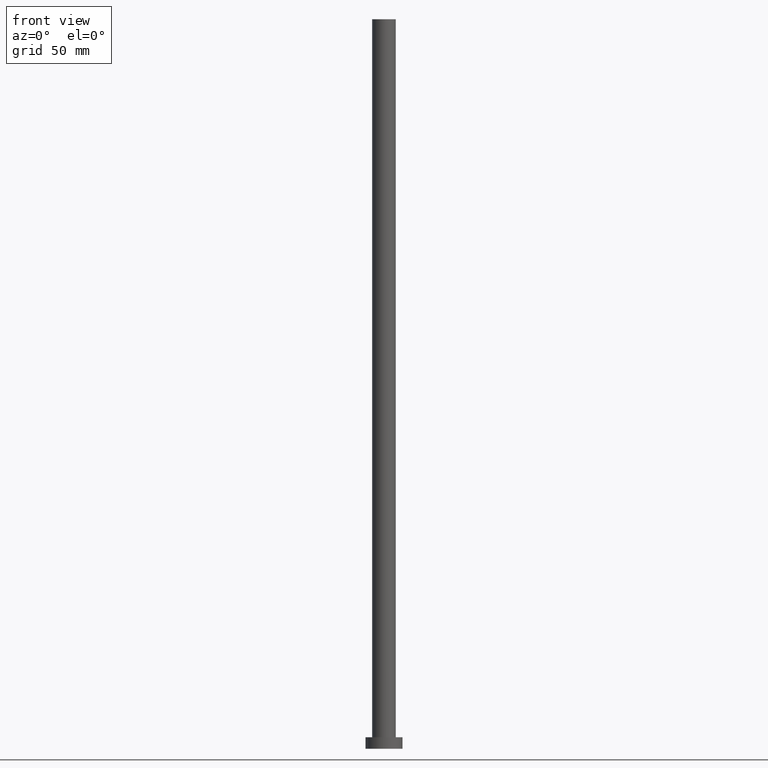
[diagram: clean part render]
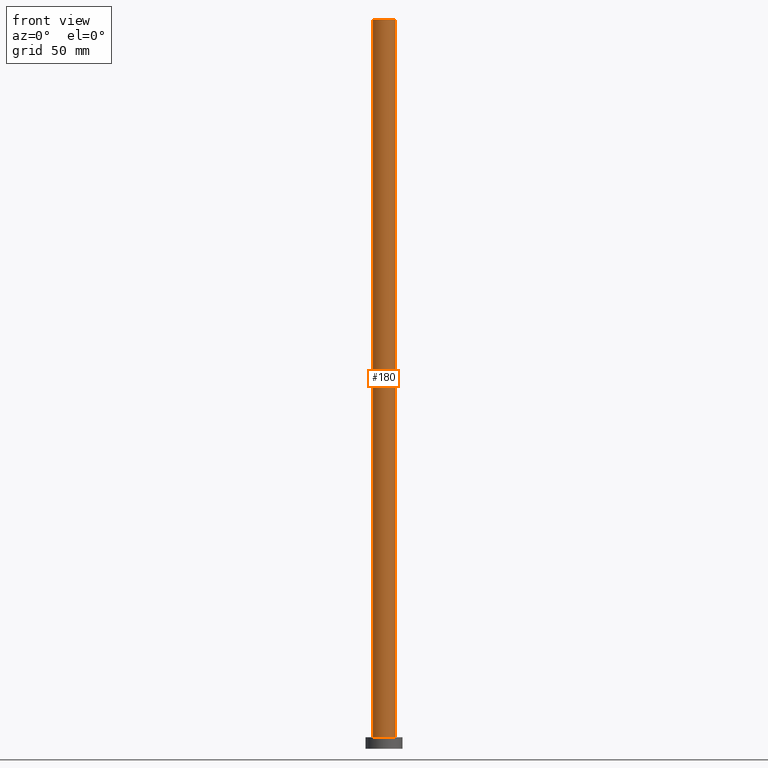
[diagram: same view with one face highlighted and labeled with its STEP entity id]
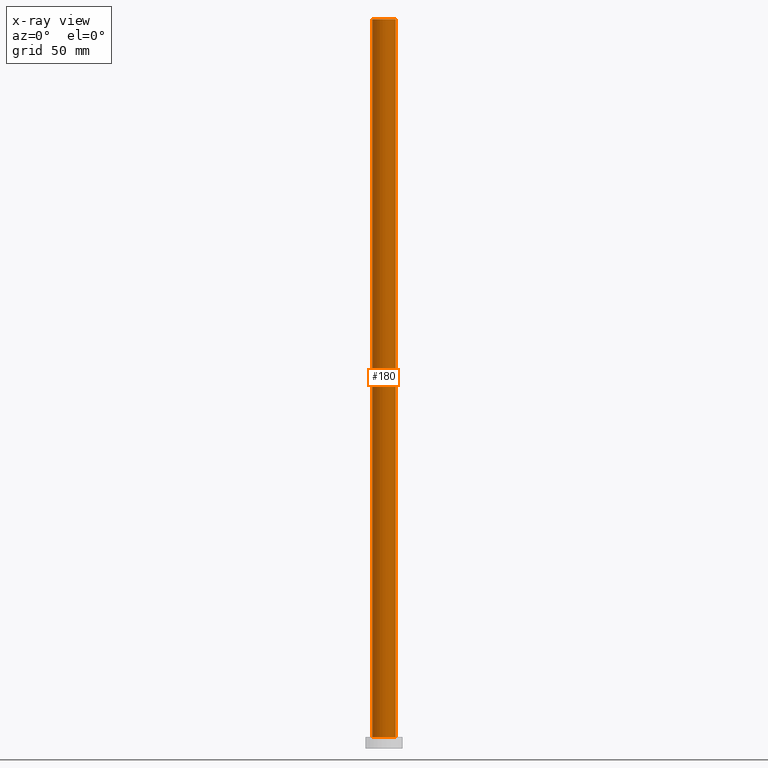
[diagram: x-ray of the same camera — body ghosted, the highlighted face saturated]
A machine part, front view. The second image highlights one B-rep face of the part: STEP entity #180.
The next image is the same camera in x-ray: the body ghosted, the highlighted face saturated — about 0% of this face is hidden behind the body in this view.
In plain terms, the highlighted cylindrical surface (edge-blend (fillet) strip) has radius 5.1 mm, axis along (-0, -0, -1).
Its self-contained STEP definition (entity closure, byte-faithful):
#1 = VERTEX_POINT ( 'NONE', #121 ) ;
#3 = LINE ( 'NONE', #246, #58 ) ;
#9 = DIRECTION ( 'NONE',  ( -1.000000000000000000, 0.000000000000000000, 0.000000000000000000 ) ) ;
#19 = DIRECTION ( 'NONE',  ( 1.000000000000000000, 0.000000000000000000, 0.000000000000000000 ) ) ;
#22 = DIRECTION ( 'NONE',  ( 0.000000000000000000, 0.000000000000000000, 1.000000000000000000 ) ) ;
#30 = EDGE_CURVE ( 'NONE', #135, #78, #3, .T. ) ;
#34 = EDGE_CURVE ( 'NONE', #1, #136, #184, .T. ) ;
#37 = ORIENTED_EDGE ( 'NONE', *, *, #140, .T. ) ;
#43 = DIRECTION ( 'NONE',  ( 0.000000000000000000, 0.000000000000000000, 1.000000000000000000 ) ) ;
#57 = ORIENTED_EDGE ( 'NONE', *, *, #131, .F. ) ;
#58 = VECTOR ( 'NONE', #105, 1000.000000000000000 ) ;
#62 = CARTESIAN_POINT ( 'NONE',  ( 5.099999999999999645, 6.245698675651500839E-16, 315.0000000000000000 ) ) ;
#63 = CIRCLE ( 'NONE', #204, 5.099999999999999645 ) ;
#72 = CIRCLE ( 'NONE', #111, 5.099999999999999645 ) ;
#78 = VERTEX_POINT ( 'NONE', #244 ) ;
#86 = AXIS2_PLACEMENT_3D ( 'NONE', #209, #88, #9 ) ;
#87 = CARTESIAN_POINT ( 'NONE',  ( -5.099999999999999645, 0.000000000000000000, 315.0000000000000000 ) ) ;
#88 = DIRECTION ( 'NONE',  ( -0.000000000000000000, -0.000000000000000000, -1.000000000000000000 ) ) ;
#91 = FACE_OUTER_BOUND ( 'NONE', #165, .T. ) ;
#105 = DIRECTION ( 'NONE',  ( -0.000000000000000000, -0.000000000000000000, -1.000000000000000000 ) ) ;
#111 = AXIS2_PLACEMENT_3D ( 'NONE', #142, #43, #19 ) ;
#118 = ORIENTED_EDGE ( 'NONE', *, *, #30, .F. ) ;
#120 = CARTESIAN_POINT ( 'NONE',  ( -5.099999999999999645, 0.000000000000000000, 5.000000000000000000 ) ) ;
#121 = CARTESIAN_POINT ( 'NONE',  ( -5.099999999999999645, 0.000000000000000000, 315.0000000000000000 ) ) ;
#129 = VECTOR ( 'NONE', #247, 1000.000000000000000 ) ;
#131 = EDGE_CURVE ( 'NONE', #1, #135, #72, .T. ) ;
#135 = VERTEX_POINT ( 'NONE', #62 ) ;
#136 = VERTEX_POINT ( 'NONE', #120 ) ;
#140 = EDGE_CURVE ( 'NONE', #136, #78, #63, .T. ) ;
#142 = CARTESIAN_POINT ( 'NONE',  ( 0.000000000000000000, 0.000000000000000000, 315.0000000000000000 ) ) ;
#145 = CYLINDRICAL_SURFACE ( 'NONE', #86, 5.099999999999999645 ) ;
#158 = ORIENTED_EDGE ( 'NONE', *, *, #34, .T. ) ;
#165 = EDGE_LOOP ( 'NONE', ( #118, #57, #158, #37 ) ) ;
#180 = ADVANCED_FACE ( 'NONE', ( #91 ), #145, .T. ) ;
#182 = DIRECTION ( 'NONE',  ( 1.000000000000000000, 0.000000000000000000, 0.000000000000000000 ) ) ;
#184 = LINE ( 'NONE', #87, #129 ) ;
#200 = CARTESIAN_POINT ( 'NONE',  ( 0.000000000000000000, 0.000000000000000000, 5.000000000000000000 ) ) ;
#204 = AXIS2_PLACEMENT_3D ( 'NONE', #200, #22, #182 ) ;
#209 = CARTESIAN_POINT ( 'NONE',  ( 0.000000000000000000, 0.000000000000000000, 315.0000000000000000 ) ) ;
#244 = CARTESIAN_POINT ( 'NONE',  ( 5.099999999999999645, 6.245698675651500839E-16, 5.000000000000000000 ) ) ;
#246 = CARTESIAN_POINT ( 'NONE',  ( 5.099999999999999645, 6.245698675651500839E-16, 315.0000000000000000 ) ) ;
#247 = DIRECTION ( 'NONE',  ( -0.000000000000000000, -0.000000000000000000, -1.000000000000000000 ) ) ;